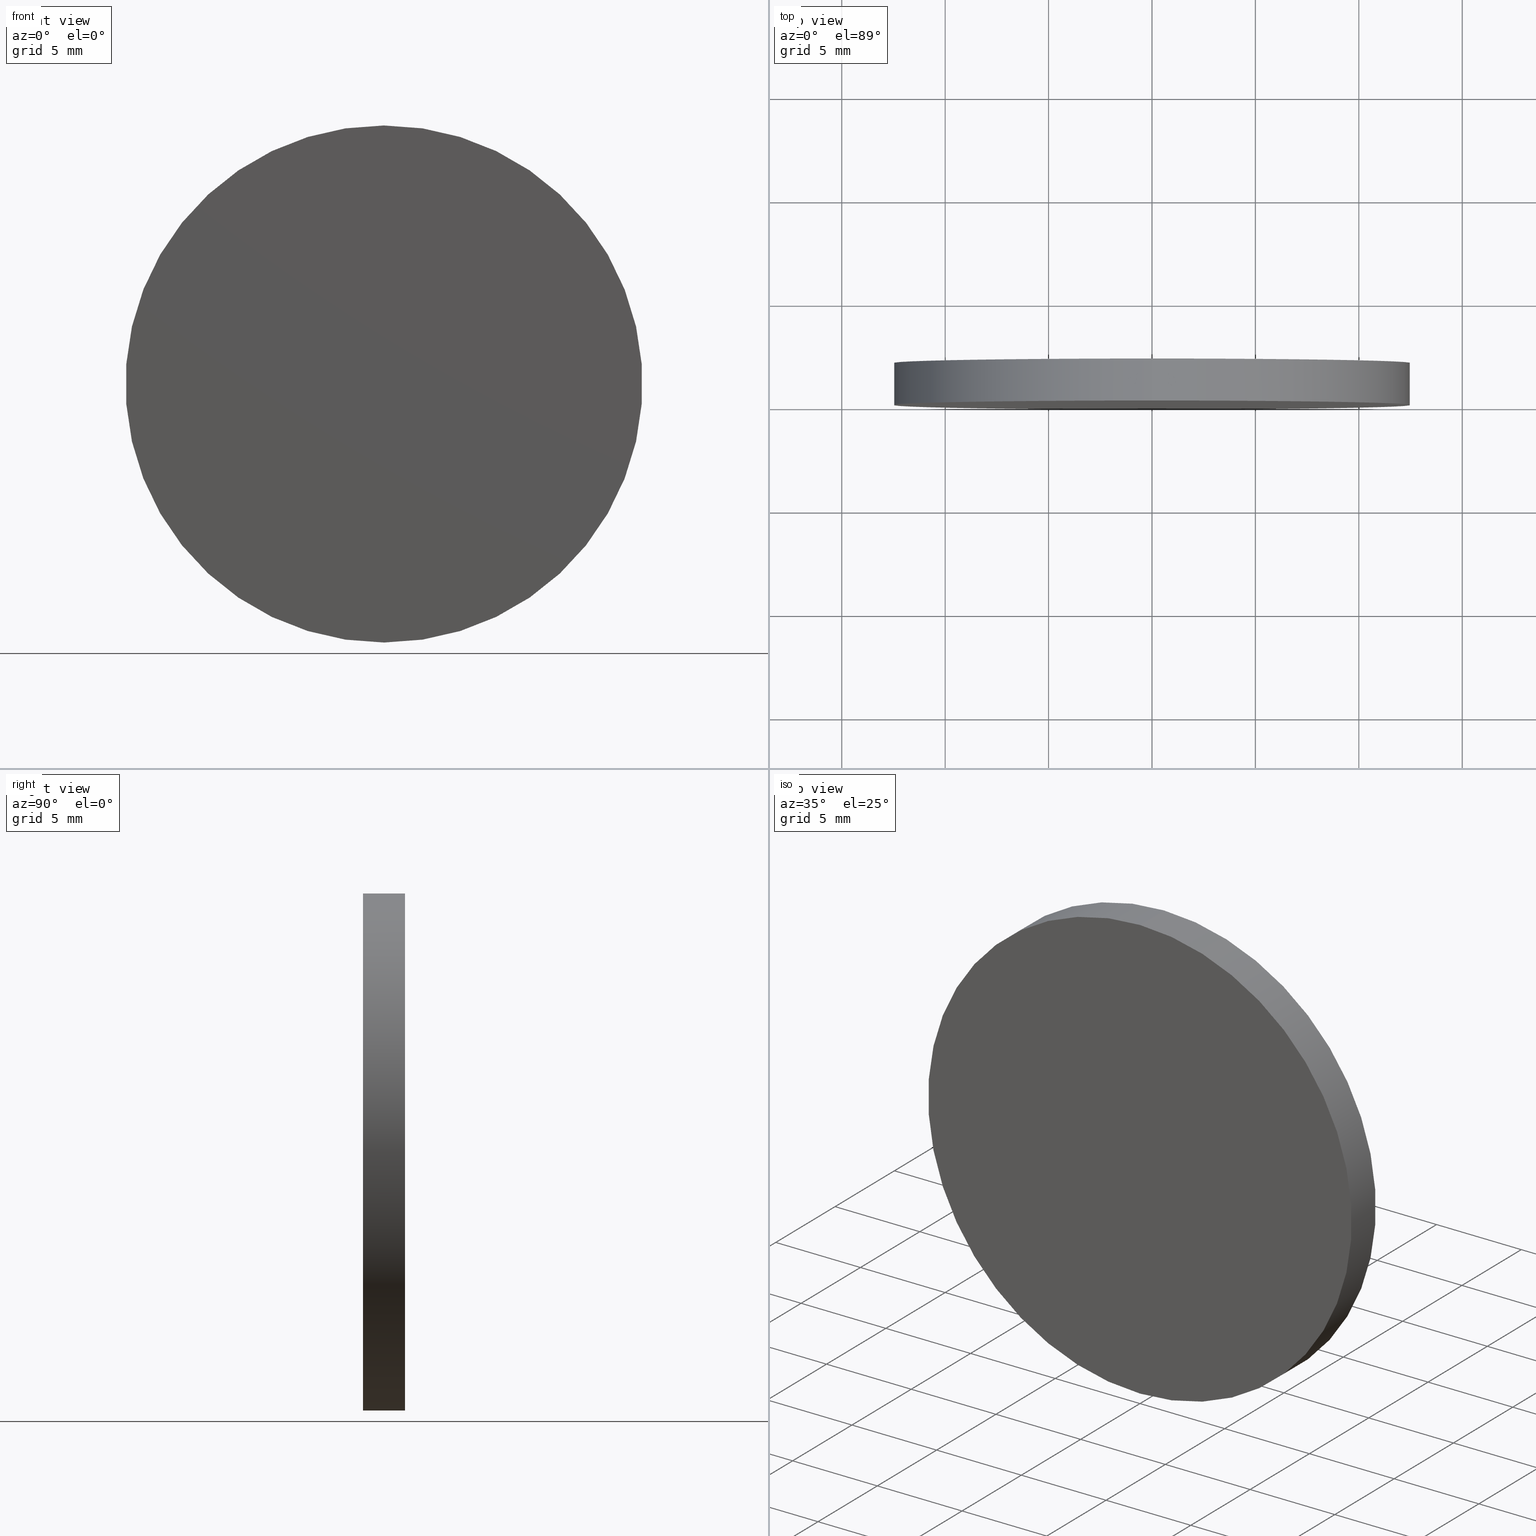
[diagram: canonical four-view strip — front | top / right | iso, engineering-drawing reading convention]
A machine part, canonical four-view strip (front | top / right | iso — engineering-drawing reading convention). The complete STEP part file that produces these views, byte-faithful:
ISO-10303-21;
HEADER;
FILE_DESCRIPTION (( 'STEP AP214' ),
    '1' );
FILE_NAME ('248589.STEP',
    '2019-08-06T03:30:54',
    ( 'user' ),
    ( '΢���й�' ),
    'SwSTEP 2.0',
    'SolidWorks 2016',
    '' );
FILE_SCHEMA (( 'AUTOMOTIVE_DESIGN' ));
ENDSEC;

DATA;
#1 = PRODUCT_DEFINITION_CONTEXT ( 'detailed design', #109, 'design' ) ;
#2 = FACE_OUTER_BOUND ( 'NONE', #113, .T. ) ;
#3 = DIRECTION ( 'NONE',  ( 0.0000000000000000000, -0.0000000000000000000, 1.000000000000000000 ) ) ;
#4 = PRODUCT_CONTEXT ( 'NONE', #5, 'mechanical' ) ;
#5 = APPLICATION_CONTEXT ( 'automotive_design' ) ;
#6 = ORIENTED_EDGE ( 'NONE', *, *, #112, .T. ) ;
#7 = DIRECTION ( 'NONE',  ( 0.0000000000000000000, 1.000000000000000000, 0.0000000000000000000 ) ) ;
#8 =( NAMED_UNIT ( * ) SI_UNIT ( $, .STERADIAN. ) SOLID_ANGLE_UNIT ( ) );
#9 = CARTESIAN_POINT ( 'NONE',  ( 0.0000000000000000000, 0.0000000000000000000, 0.0000000000000000000 ) ) ;
#10 = PRESENTATION_STYLE_ASSIGNMENT (( #23 ) ) ;
#11 = CARTESIAN_POINT ( 'NONE',  ( 0.0000000000000000000, 2.029999999999999800, -12.50000000000000000 ) ) ;
#12 = FILL_AREA_STYLE ('',( #132 ) ) ;
#13 = CARTESIAN_POINT ( 'NONE',  ( 0.0000000000000000000, 2.029999999999999800, 0.0000000000000000000 ) ) ;
#14 = EDGE_CURVE ( 'NONE', #64, #22, #72, .T. ) ;
#15 = ORIENTED_EDGE ( 'NONE', *, *, #14, .T. ) ;
#16 = DIRECTION ( 'NONE',  ( 0.0000000000000000000, 0.0000000000000000000, 1.000000000000000000 ) ) ;
#17 = COLOUR_RGB ( '',1.000000000000000000, 1.000000000000000000, 1.000000000000000000 ) ;
#18 = ORIENTED_EDGE ( 'NONE', *, *, #57, .F. ) ;
#19 = ADVANCED_FACE ( 'NONE', ( #33 ), #78, .F. ) ;
#20 =( NAMED_UNIT ( * ) SI_UNIT ( $, .STERADIAN. ) SOLID_ANGLE_UNIT ( ) );
#21 = ADVANCED_FACE ( 'NONE', ( #34 ), #134, .T. ) ;
#22 = VERTEX_POINT ( 'NONE', #70 ) ;
#23 = SURFACE_STYLE_USAGE ( .BOTH. , #39 ) ;
#24 =( NAMED_UNIT ( * ) SI_UNIT ( $, .STERADIAN. ) SOLID_ANGLE_UNIT ( ) );
#25 = UNCERTAINTY_MEASURE_WITH_UNIT (LENGTH_MEASURE( 1.000000000000000100E-005 ), #45, 'distance_accuracy_value', 'NONE');
#26 = EDGE_CURVE ( 'NONE', #22, #64, #87, .T. ) ;
#27 = APPLICATION_PROTOCOL_DEFINITION ( 'draft international standard', 'automotive_design', 1998, #109 ) ;
#28 = CARTESIAN_POINT ( 'NONE',  ( 0.0000000000000000000, 2.029999999999999800, 0.0000000000000000000 ) ) ;
#29 = LINE ( 'NONE', #50, #137 ) ;
#30 = AXIS2_PLACEMENT_3D ( 'NONE', #89, #65, #54 ) ;
#31 =( NAMED_UNIT ( * ) PLANE_ANGLE_UNIT ( ) SI_UNIT ( $, .RADIAN. ) );
#32 = AXIS2_PLACEMENT_3D ( 'NONE', #9, #136, #98 ) ;
#33 = FACE_OUTER_BOUND ( 'NONE', #69, .T. ) ;
#34 = FACE_OUTER_BOUND ( 'NONE', #118, .T. ) ;
#35 = AXIS2_PLACEMENT_3D ( 'NONE', #13, #74, #100 ) ;
#36 = AXIS2_PLACEMENT_3D ( 'NONE', #63, #102, #111 ) ;
#37 = FILL_AREA_STYLE ('',( #96 ) ) ;
#38 = CARTESIAN_POINT ( 'NONE',  ( 0.0000000000000000000, 0.0000000000000000000, 0.0000000000000000000 ) ) ;
#39 = SURFACE_SIDE_STYLE ('',( #140 ) ) ;
#40 = AXIS2_PLACEMENT_3D ( 'NONE', #122, #84, #71 ) ;
#41 = PRODUCT_DEFINITION_FORMATION_WITH_SPECIFIED_SOURCE ( '�κ�', '', #79, .NOT_KNOWN. ) ;
#42 = EDGE_CURVE ( 'NONE', #77, #66, #108, .T. ) ;
#43 = ORIENTED_EDGE ( 'NONE', *, *, #26, .F. ) ;
#44 = CARTESIAN_POINT ( 'NONE',  ( 0.0000000000000000000, 0.0000000000000000000, 0.0000000000000000000 ) ) ;
#45 =( LENGTH_UNIT ( ) NAMED_UNIT ( * ) SI_UNIT ( .MILLI., .METRE. ) );
#46 = ADVANCED_FACE ( 'NONE', ( #2 ), #82, .T. ) ;
#47 = PRODUCT_RELATED_PRODUCT_CATEGORY ( 'part', '', ( #79 ) ) ;
#48 = CARTESIAN_POINT ( 'NONE',  ( 0.0000000000000000000, 0.0000000000000000000, -12.50000000000000000 ) ) ;
#49 = CARTESIAN_POINT ( 'NONE',  ( 1.530808498934191500E-015, 2.029999999999999800, 12.50000000000000000 ) ) ;
#50 = CARTESIAN_POINT ( 'NONE',  ( 0.0000000000000000000, 2.029999999999999800, -12.50000000000000000 ) ) ;
#51 = SURFACE_STYLE_FILL_AREA ( #37 ) ;
#52 = EDGE_CURVE ( 'NONE', #66, #64, #29, .T. ) ;
#53 = STYLED_ITEM ( 'NONE', ( #10 ), #67 ) ;
#54 = DIRECTION ( 'NONE',  ( 0.0000000000000000000, 0.0000000000000000000, 1.000000000000000000 ) ) ;
#55 = LINE ( 'NONE', #62, #103 ) ;
#56 = CARTESIAN_POINT ( 'NONE',  ( 0.0000000000000000000, 0.0000000000000000000, 0.0000000000000000000 ) ) ;
#57 = EDGE_CURVE ( 'NONE', #66, #77, #106, .T. ) ;
#58 = PRODUCT_DEFINITION ( 'δ֪', '', #41, #1 ) ;
#59 = EDGE_LOOP ( 'NONE', ( #120, #6, #123, #94 ) ) ;
#60 = ORIENTED_EDGE ( 'NONE', *, *, #57, .T. ) ;
#61 = DIRECTION ( 'NONE',  ( 0.0000000000000000000, 1.000000000000000000, 0.0000000000000000000 ) ) ;
#62 = CARTESIAN_POINT ( 'NONE',  ( 1.530808498934191500E-015, 2.029999999999999800, 12.50000000000000000 ) ) ;
#63 = CARTESIAN_POINT ( 'NONE',  ( 0.0000000000000000000, 2.029999999999999800, 0.0000000000000000000 ) ) ;
#64 = VERTEX_POINT ( 'NONE', #48 ) ;
#65 = DIRECTION ( 'NONE',  ( 0.0000000000000000000, 1.000000000000000000, 0.0000000000000000000 ) ) ;
#66 = VERTEX_POINT ( 'NONE', #11 ) ;
#67 = ADVANCED_BREP_SHAPE_REPRESENTATION ( '248589', ( #129, #104 ), #117 ) ;
#68 = ORIENTED_EDGE ( 'NONE', *, *, #112, .F. ) ;
#69 = EDGE_LOOP ( 'NONE', ( #88, #43 ) ) ;
#70 = CARTESIAN_POINT ( 'NONE',  ( 1.530808498934191500E-015, 0.0000000000000000000, 12.50000000000000000 ) ) ;
#71 = DIRECTION ( 'NONE',  ( 0.0000000000000000000, 0.0000000000000000000, -1.000000000000000000 ) ) ;
#72 = CIRCLE ( 'NONE', #125, 12.50000000000000000 ) ;
#73 = SURFACE_STYLE_USAGE ( .BOTH. , #76 ) ;
#74 = DIRECTION ( 'NONE',  ( -0.0000000000000000000, -1.000000000000000000, -0.0000000000000000000 ) ) ;
#75 = AXIS2_PLACEMENT_3D ( 'NONE', #28, #61, #3 ) ;
#76 = SURFACE_SIDE_STYLE ('',( #51 ) ) ;
#77 = VERTEX_POINT ( 'NONE', #49 ) ;
#78 = PLANE ( 'NONE',  #93 ) ;
#79 = PRODUCT ( '248589', '248589', '', ( #4 ) ) ;
#80 = CYLINDRICAL_SURFACE ( 'NONE', #40, 12.50000000000000000 ) ;
#81 = PRODUCT_DEFINITION_SHAPE ( 'NONE', 'NONE',  #58 ) ;
#82 = CYLINDRICAL_SURFACE ( 'NONE', #35, 12.50000000000000000 ) ;
#83 =( LENGTH_UNIT ( ) NAMED_UNIT ( * ) SI_UNIT ( .MILLI., .METRE. ) );
#84 = DIRECTION ( 'NONE',  ( -0.0000000000000000000, -1.000000000000000000, -0.0000000000000000000 ) ) ;
#85 = COLOUR_RGB ( '',1.000000000000000000, 1.000000000000000000, 1.000000000000000000 ) ;
#86 = DIRECTION ( 'NONE',  ( 0.0000000000000000000, 0.0000000000000000000, 1.000000000000000000 ) ) ;
#87 = CIRCLE ( 'NONE', #32, 12.50000000000000000 ) ;
#88 = ORIENTED_EDGE ( 'NONE', *, *, #14, .F. ) ;
#89 = CARTESIAN_POINT ( 'NONE',  ( 0.0000000000000000000, 2.029999999999999800, 0.0000000000000000000 ) ) ;
#90 = ORIENTED_EDGE ( 'NONE', *, *, #42, .T. ) ;
#91 = ADVANCED_FACE ( 'NONE', ( #133 ), #80, .T. ) ;
#92 =( LENGTH_UNIT ( ) NAMED_UNIT ( * ) SI_UNIT ( .MILLI., .METRE. ) );
#93 = AXIS2_PLACEMENT_3D ( 'NONE', #38, #114, #124 ) ;
#94 = ORIENTED_EDGE ( 'NONE', *, *, #52, .F. ) ;
#95 = SHAPE_DEFINITION_REPRESENTATION ( #81, #67 ) ;
#96 = FILL_AREA_STYLE_COLOUR ( '', #85 ) ;
#97 =( GEOMETRIC_REPRESENTATION_CONTEXT ( 3 ) GLOBAL_UNCERTAINTY_ASSIGNED_CONTEXT ( ( #101 ) ) GLOBAL_UNIT_ASSIGNED_CONTEXT ( ( #92, #119, #20 ) ) REPRESENTATION_CONTEXT ( 'NONE', 'WORKASPACE' ) );
#98 = DIRECTION ( 'NONE',  ( 0.0000000000000000000, 0.0000000000000000000, 1.000000000000000000 ) ) ;
#99 = DIRECTION ( 'NONE',  ( 1.000000000000000000, 0.0000000000000000000, 0.0000000000000000000 ) ) ;
#100 = DIRECTION ( 'NONE',  ( 0.0000000000000000000, 0.0000000000000000000, -1.000000000000000000 ) ) ;
#101 = UNCERTAINTY_MEASURE_WITH_UNIT (LENGTH_MEASURE( 1.000000000000000100E-005 ), #92, 'distance_accuracy_value', 'NONE');
#102 = DIRECTION ( 'NONE',  ( 0.0000000000000000000, 1.000000000000000000, 0.0000000000000000000 ) ) ;
#103 = VECTOR ( 'NONE', #130, 1000.000000000000000 ) ;
#104 = AXIS2_PLACEMENT_3D ( 'NONE', #56, #86, #99 ) ;
#105 = STYLED_ITEM ( 'NONE', ( #131 ), #129 ) ;
#106 = CIRCLE ( 'NONE', #30, 12.50000000000000000 ) ;
#107 =( NAMED_UNIT ( * ) PLANE_ANGLE_UNIT ( ) SI_UNIT ( $, .RADIAN. ) );
#108 = CIRCLE ( 'NONE', #36, 12.50000000000000000 ) ;
#109 = APPLICATION_CONTEXT ( 'automotive_design' ) ;
#110 = UNCERTAINTY_MEASURE_WITH_UNIT (LENGTH_MEASURE( 1.000000000000000100E-005 ), #83, 'distance_accuracy_value', 'NONE');
#111 = DIRECTION ( 'NONE',  ( 0.0000000000000000000, 0.0000000000000000000, 1.000000000000000000 ) ) ;
#112 = EDGE_CURVE ( 'NONE', #77, #22, #55, .T. ) ;
#113 = EDGE_LOOP ( 'NONE', ( #68, #18, #126, #15 ) ) ;
#114 = DIRECTION ( 'NONE',  ( 0.0000000000000000000, 1.000000000000000000, 0.0000000000000000000 ) ) ;
#115 = MECHANICAL_DESIGN_GEOMETRIC_PRESENTATION_REPRESENTATION (  '', ( #53 ), #97 ) ;
#116 = CLOSED_SHELL ( 'NONE', ( #91, #46, #21, #19 ) ) ;
#117 =( GEOMETRIC_REPRESENTATION_CONTEXT ( 3 ) GLOBAL_UNCERTAINTY_ASSIGNED_CONTEXT ( ( #110 ) ) GLOBAL_UNIT_ASSIGNED_CONTEXT ( ( #83, #31, #8 ) ) REPRESENTATION_CONTEXT ( 'NONE', 'WORKASPACE' ) );
#118 = EDGE_LOOP ( 'NONE', ( #60, #90 ) ) ;
#119 =( NAMED_UNIT ( * ) PLANE_ANGLE_UNIT ( ) SI_UNIT ( $, .RADIAN. ) );
#120 = ORIENTED_EDGE ( 'NONE', *, *, #42, .F. ) ;
#121 =( GEOMETRIC_REPRESENTATION_CONTEXT ( 3 ) GLOBAL_UNCERTAINTY_ASSIGNED_CONTEXT ( ( #25 ) ) GLOBAL_UNIT_ASSIGNED_CONTEXT ( ( #45, #107, #24 ) ) REPRESENTATION_CONTEXT ( 'NONE', 'WORKASPACE' ) );
#122 = CARTESIAN_POINT ( 'NONE',  ( 0.0000000000000000000, 2.029999999999999800, 0.0000000000000000000 ) ) ;
#123 = ORIENTED_EDGE ( 'NONE', *, *, #26, .T. ) ;
#124 = DIRECTION ( 'NONE',  ( 0.0000000000000000000, -0.0000000000000000000, 1.000000000000000000 ) ) ;
#125 = AXIS2_PLACEMENT_3D ( 'NONE', #44, #7, #16 ) ;
#126 = ORIENTED_EDGE ( 'NONE', *, *, #52, .T. ) ;
#127 = PRESENTATION_LAYER_ASSIGNMENT (  '', '', ( #53 ) ) ;
#128 = PRESENTATION_LAYER_ASSIGNMENT (  '', '', ( #105 ) ) ;
#129 = MANIFOLD_SOLID_BREP ( '͹̨-����1', #116 ) ;
#130 = DIRECTION ( 'NONE',  ( -0.0000000000000000000, -1.000000000000000000, -0.0000000000000000000 ) ) ;
#131 = PRESENTATION_STYLE_ASSIGNMENT (( #73 ) ) ;
#132 = FILL_AREA_STYLE_COLOUR ( '', #17 ) ;
#133 = FACE_OUTER_BOUND ( 'NONE', #59, .T. ) ;
#134 = PLANE ( 'NONE',  #75 ) ;
#135 = APPLICATION_PROTOCOL_DEFINITION ( 'draft international standard', 'automotive_design', 1998, #5 ) ;
#136 = DIRECTION ( 'NONE',  ( 0.0000000000000000000, 1.000000000000000000, 0.0000000000000000000 ) ) ;
#137 = VECTOR ( 'NONE', #139, 1000.000000000000000 ) ;
#138 = MECHANICAL_DESIGN_GEOMETRIC_PRESENTATION_REPRESENTATION (  '', ( #105 ), #121 ) ;
#139 = DIRECTION ( 'NONE',  ( -0.0000000000000000000, -1.000000000000000000, -0.0000000000000000000 ) ) ;
#140 = SURFACE_STYLE_FILL_AREA ( #12 ) ;
ENDSEC;
END-ISO-10303-21;
